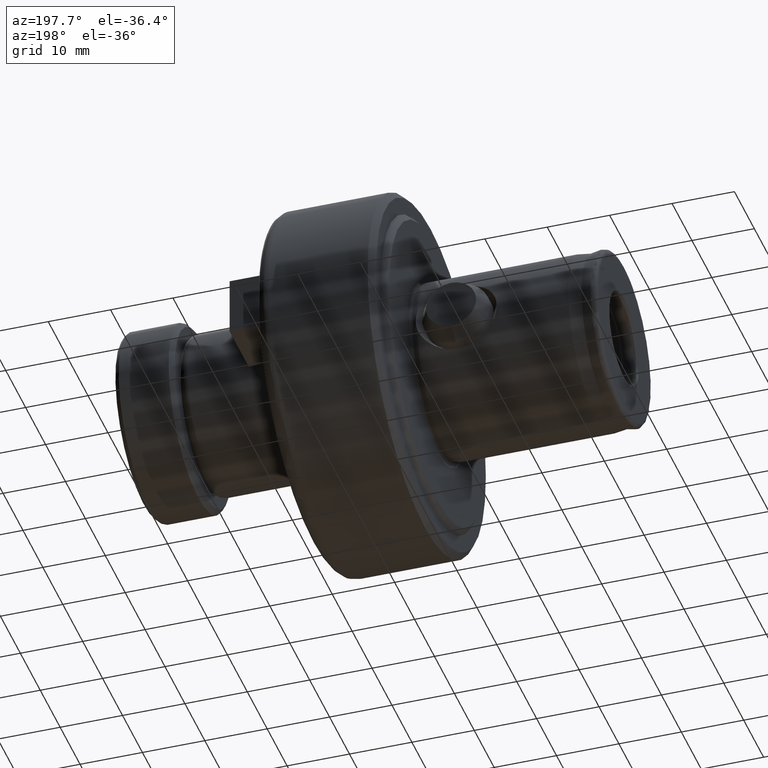
[diagram: clean part render]
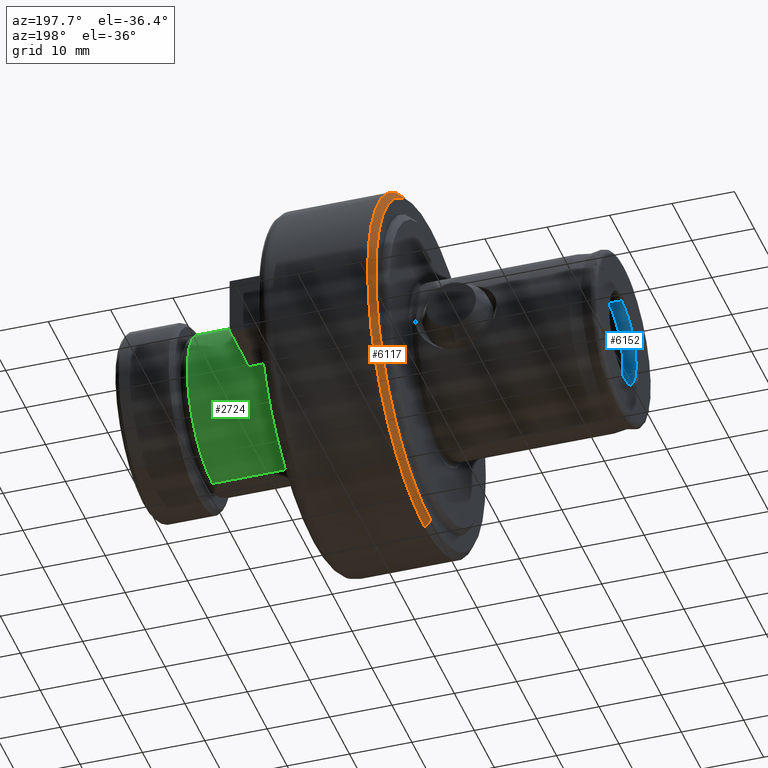
[diagram: same view with three faces highlighted in distinct colors, each labeled with its STEP entity id]
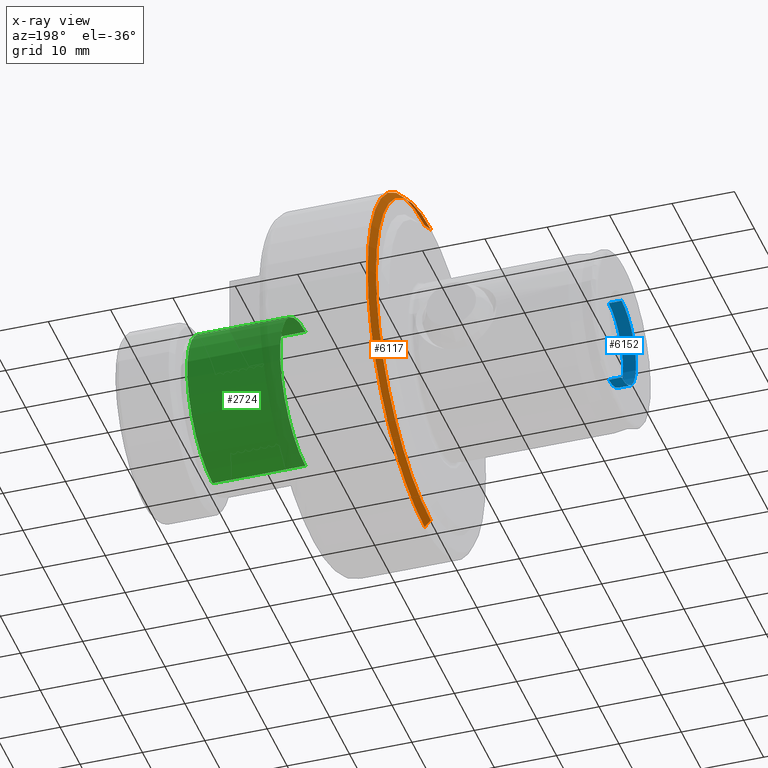
[diagram: x-ray of the same camera — body ghosted, the three highlighted faces saturated]
A machine part, auxiliary view with three faces highlighted in distinct colors.
The next image is the same camera in x-ray (body ghosted, the three faces saturated) — at least one of them is partly hidden behind the body in this view.
Their STEP definitions:

[orange] entity #6117 — the highlighted conical surface has half-angle 45 deg.
#133 = AXIS2_PLACEMENT_3D ( 'NONE', #1459, #876, #6309 ) ;
#334 = LINE ( 'NONE', #5819, #2823 ) ;
#419 = CARTESIAN_POINT ( 'NONE',  ( 31.00000000000000000, 0.0000000000000000000, -27.59999999999998700 ) ) ;
#754 = CARTESIAN_POINT ( 'NONE',  ( 31.00000000000000000, 3.441257505604061400E-015, 27.59999999999998700 ) ) ;
#871 = DIRECTION ( 'NONE',  ( 0.0000000000000000000, 0.0000000000000000000, -1.000000000000000000 ) ) ;
#876 = DIRECTION ( 'NONE',  ( 1.000000000000000000, 0.0000000000000000000, 0.0000000000000000000 ) ) ;
#1054 = VERTEX_POINT ( 'NONE', #1749 ) ;
#1405 = CARTESIAN_POINT ( 'NONE',  ( 31.00000000000000000, 0.0000000000000000000, -27.59999999999998700 ) ) ;
#1459 = CARTESIAN_POINT ( 'NONE',  ( 31.00000000000000000, 0.0000000000000000000, 0.0000000000000000000 ) ) ;
#1749 = CARTESIAN_POINT ( 'NONE',  ( 32.00000000000002800, 3.502489845561430200E-015, -28.60000000000000100 ) ) ;
#1850 = EDGE_CURVE ( 'NONE', #6926, #1054, #7606, .T. ) ;
#2044 = DIRECTION ( 'NONE',  ( 0.7071067811865524600, 8.659560562354874900E-017, 0.7071067811865426900 ) ) ;
#2217 = AXIS2_PLACEMENT_3D ( 'NONE', #5018, #3783, #7422 ) ;
#2524 = ORIENTED_EDGE ( 'NONE', *, *, #2607, .F. ) ;
#2585 = VERTEX_POINT ( 'NONE', #754 ) ;
#2607 = EDGE_CURVE ( 'NONE', #2585, #6926, #5608, .T. ) ;
#2709 = CARTESIAN_POINT ( 'NONE',  ( 31.00000000000000000, 0.0000000000000000000, 0.0000000000000000000 ) ) ;
#2719 = DIRECTION ( 'NONE',  ( 0.7071067811865524600, 0.0000000000000000000, -0.7071067811865426900 ) ) ;
#2823 = VECTOR ( 'NONE', #2044, 1000.000000000000000 ) ;
#3783 = DIRECTION ( 'NONE',  ( 1.000000000000000000, 0.0000000000000000000, 0.0000000000000000000 ) ) ;
#3981 = ORIENTED_EDGE ( 'NONE', *, *, #1850, .F. ) ;
#4024 = AXIS2_PLACEMENT_3D ( 'NONE', #2709, #4606, #871 ) ;
#4457 = EDGE_LOOP ( 'NONE', ( #2524, #5388, #5060, #3981 ) ) ;
#4495 = EDGE_CURVE ( 'NONE', #2585, #7444, #334, .T. ) ;
#4606 = DIRECTION ( 'NONE',  ( -1.000000000000000000, -0.0000000000000000000, -0.0000000000000000000 ) ) ;
#4671 = CARTESIAN_POINT ( 'NONE',  ( 32.00000000000002800, 0.0000000000000000000, 28.60000000000000100 ) ) ;
#5018 = CARTESIAN_POINT ( 'NONE',  ( 32.00000000000002800, 0.0000000000000000000, 0.0000000000000000000 ) ) ;
#5060 = ORIENTED_EDGE ( 'NONE', *, *, #5537, .F. ) ;
#5388 = ORIENTED_EDGE ( 'NONE', *, *, #4495, .T. ) ;
#5393 = CIRCLE ( 'NONE', #2217, 28.60000000000000100 ) ;
#5537 = EDGE_CURVE ( 'NONE', #1054, #7444, #5393, .T. ) ;
#5608 = CIRCLE ( 'NONE', #4024, 27.59999999999998700 ) ;
#5819 = CARTESIAN_POINT ( 'NONE',  ( 31.00000000000000000, 3.380025165646693100E-015, 27.59999999999998700 ) ) ;
#6117 = ADVANCED_FACE ( 'NONE', ( #6150 ), #7106, .T. ) ;
#6150 = FACE_OUTER_BOUND ( 'NONE', #4457, .T. ) ;
#6171 = VECTOR ( 'NONE', #2719, 1000.000000000000000 ) ;
#6309 = DIRECTION ( 'NONE',  ( 0.0000000000000000000, 0.0000000000000000000, -1.000000000000000000 ) ) ;
#6926 = VERTEX_POINT ( 'NONE', #419 ) ;
#7106 = CONICAL_SURFACE ( 'NONE', #133, 27.59999999999998700, 0.7853981633974415100 ) ;
#7422 = DIRECTION ( 'NONE',  ( 0.0000000000000000000, 0.0000000000000000000, -1.000000000000000000 ) ) ;
#7444 = VERTEX_POINT ( 'NONE', #4671 ) ;
#7606 = LINE ( 'NONE', #1405, #6171 ) ;

[blue] entity #6152 — the highlighted cylindrical surface (partial cylindrical patch) has radius 7.25 mm, axis along (-1, -0, -0).
#113 = DIRECTION ( 'NONE',  ( 0.0000000000000000000, 0.0000000000000000000, 1.000000000000000000 ) ) ;
#155 = CARTESIAN_POINT ( 'NONE',  ( 0.4330127018922177400, 0.0000000000000000000, 7.250000000000000000 ) ) ;
#339 = EDGE_CURVE ( 'NONE', #6082, #4906, #3740, .T. ) ;
#505 = EDGE_LOOP ( 'NONE', ( #3318, #5113, #1606, #4498 ) ) ;
#713 = CARTESIAN_POINT ( 'NONE',  ( 2.500000000000001300, 8.878689293818310100E-016, -7.250000000000000000 ) ) ;
#832 = DIRECTION ( 'NONE',  ( 0.0000000000000000000, 0.0000000000000000000, 1.000000000000000000 ) ) ;
#1194 = EDGE_CURVE ( 'NONE', #7292, #4906, #4405, .T. ) ;
#1365 = CARTESIAN_POINT ( 'NONE',  ( 0.0000000000000000000, 0.0000000000000000000, 7.250000000000000000 ) ) ;
#1606 = ORIENTED_EDGE ( 'NONE', *, *, #1194, .T. ) ;
#1718 = EDGE_CURVE ( 'NONE', #3128, #7292, #4395, .T. ) ;
#1829 = CARTESIAN_POINT ( 'NONE',  ( 0.0000000000000000000, 8.878689293818310100E-016, -7.250000000000000000 ) ) ;
#2089 = DIRECTION ( 'NONE',  ( -1.000000000000000000, -0.0000000000000000000, -0.0000000000000000000 ) ) ;
#2801 = VECTOR ( 'NONE', #5627, 1000.000000000000000 ) ;
#3128 = VERTEX_POINT ( 'NONE', #713 ) ;
#3288 = CARTESIAN_POINT ( 'NONE',  ( 0.0000000000000000000, 0.0000000000000000000, 0.0000000000000000000 ) ) ;
#3318 = ORIENTED_EDGE ( 'NONE', *, *, #5980, .F. ) ;
#3323 = CYLINDRICAL_SURFACE ( 'NONE', #6234, 7.250000000000000000 ) ;
#3732 = DIRECTION ( 'NONE',  ( -1.000000000000000000, -0.0000000000000000000, -0.0000000000000000000 ) ) ;
#3740 = LINE ( 'NONE', #1365, #2801 ) ;
#4366 = FACE_OUTER_BOUND ( 'NONE', #505, .T. ) ;
#4395 = LINE ( 'NONE', #1829, #5803 ) ;
#4405 = CIRCLE ( 'NONE', #5534, 7.250000000000000000 ) ;
#4498 = ORIENTED_EDGE ( 'NONE', *, *, #339, .F. ) ;
#4525 = DIRECTION ( 'NONE',  ( 0.0000000000000000000, 0.0000000000000000000, 1.000000000000000000 ) ) ;
#4736 = AXIS2_PLACEMENT_3D ( 'NONE', #6829, #3732, #113 ) ;
#4906 = VERTEX_POINT ( 'NONE', #155 ) ;
#5113 = ORIENTED_EDGE ( 'NONE', *, *, #1718, .T. ) ;
#5427 = DIRECTION ( 'NONE',  ( -1.000000000000000000, -0.0000000000000000000, -0.0000000000000000000 ) ) ;
#5534 = AXIS2_PLACEMENT_3D ( 'NONE', #7237, #7324, #832 ) ;
#5627 = DIRECTION ( 'NONE',  ( -1.000000000000000000, -0.0000000000000000000, -0.0000000000000000000 ) ) ;
#5666 = CARTESIAN_POINT ( 'NONE',  ( 2.500000000000001300, 0.0000000000000000000, 7.250000000000000000 ) ) ;
#5803 = VECTOR ( 'NONE', #5427, 1000.000000000000000 ) ;
#5980 = EDGE_CURVE ( 'NONE', #3128, #6082, #7869, .T. ) ;
#6082 = VERTEX_POINT ( 'NONE', #5666 ) ;
#6152 = ADVANCED_FACE ( 'NONE', ( #4366 ), #3323, .F. ) ;
#6234 = AXIS2_PLACEMENT_3D ( 'NONE', #3288, #2089, #4525 ) ;
#6453 = CARTESIAN_POINT ( 'NONE',  ( 0.4330127018922177400, 9.031770143711729000E-016, -7.250000000000000000 ) ) ;
#6829 = CARTESIAN_POINT ( 'NONE',  ( 2.500000000000001300, 0.0000000000000000000, 0.0000000000000000000 ) ) ;
#7237 = CARTESIAN_POINT ( 'NONE',  ( 0.4330127018922177400, 0.0000000000000000000, 0.0000000000000000000 ) ) ;
#7292 = VERTEX_POINT ( 'NONE', #6453 ) ;
#7324 = DIRECTION ( 'NONE',  ( -1.000000000000000000, -0.0000000000000000000, -0.0000000000000000000 ) ) ;
#7869 = CIRCLE ( 'NONE', #4736, 7.250000000000000000 ) ;

[green] entity #2724 — the highlighted cylindrical surface (partial cylindrical patch) has radius 12.7 mm, axis along (-1, -0, -0).
#67 = CARTESIAN_POINT ( 'NONE',  ( 66.00000000000000000, 1.555301434917138400E-015, -12.69999999999999900 ) ) ;
#303 = AXIS2_PLACEMENT_3D ( 'NONE', #5170, #7627, #2853 ) ;
#356 = DIRECTION ( 'NONE',  ( -1.000000000000000000, -0.0000000000000000000, -0.0000000000000000000 ) ) ;
#369 = CARTESIAN_POINT ( 'NONE',  ( 0.0000000000000000000, 1.555301434917138400E-015, -12.69999999999999900 ) ) ;
#492 = EDGE_CURVE ( 'NONE', #6681, #1224, #1277, .T. ) ;
#775 = DIRECTION ( 'NONE',  ( -1.000000000000000000, -0.0000000000000000000, -0.0000000000000000000 ) ) ;
#952 = VERTEX_POINT ( 'NONE', #7588 ) ;
#1224 = VERTEX_POINT ( 'NONE', #7316 ) ;
#1277 = LINE ( 'NONE', #369, #7245 ) ;
#1983 = ORIENTED_EDGE ( 'NONE', *, *, #492, .T. ) ;
#2071 = EDGE_CURVE ( 'NONE', #952, #6681, #6740, .T. ) ;
#2293 = VECTOR ( 'NONE', #6970, 1000.000000000000000 ) ;
#2588 = FACE_OUTER_BOUND ( 'NONE', #7779, .T. ) ;
#2724 = ADVANCED_FACE ( 'NONE', ( #2588 ), #7417, .T. ) ;
#2756 = VERTEX_POINT ( 'NONE', #7027 ) ;
#2792 = DIRECTION ( 'NONE',  ( -1.000000000000000000, -0.0000000000000000000, -0.0000000000000000000 ) ) ;
#2830 = DIRECTION ( 'NONE',  ( 0.0000000000000000000, 0.0000000000000000000, 1.000000000000000000 ) ) ;
#2853 = DIRECTION ( 'NONE',  ( 0.0000000000000000000, 0.0000000000000000000, 1.000000000000000000 ) ) ;
#3150 = ORIENTED_EDGE ( 'NONE', *, *, #2071, .T. ) ;
#3201 = EDGE_CURVE ( 'NONE', #952, #2756, #6840, .T. ) ;
#3538 = CIRCLE ( 'NONE', #5324, 12.69999999999999900 ) ;
#3891 = ORIENTED_EDGE ( 'NONE', *, *, #7610, .F. ) ;
#3959 = CARTESIAN_POINT ( 'NONE',  ( 66.00000000000000000, 0.0000000000000000000, 0.0000000000000000000 ) ) ;
#4165 = AXIS2_PLACEMENT_3D ( 'NONE', #3959, #356, #5775 ) ;
#5170 = CARTESIAN_POINT ( 'NONE',  ( 0.0000000000000000000, 0.0000000000000000000, 0.0000000000000000000 ) ) ;
#5237 = CARTESIAN_POINT ( 'NONE',  ( 51.11223641030748200, 0.0000000000000000000, 0.0000000000000000000 ) ) ;
#5324 = AXIS2_PLACEMENT_3D ( 'NONE', #5237, #2792, #2830 ) ;
#5775 = DIRECTION ( 'NONE',  ( 0.0000000000000000000, 0.0000000000000000000, 1.000000000000000000 ) ) ;
#6357 = CARTESIAN_POINT ( 'NONE',  ( 0.0000000000000000000, 0.0000000000000000000, 12.69999999999999900 ) ) ;
#6681 = VERTEX_POINT ( 'NONE', #67 ) ;
#6740 = CIRCLE ( 'NONE', #4165, 12.69999999999999900 ) ;
#6840 = LINE ( 'NONE', #6357, #2293 ) ;
#6917 = ORIENTED_EDGE ( 'NONE', *, *, #3201, .F. ) ;
#6970 = DIRECTION ( 'NONE',  ( -1.000000000000000000, -0.0000000000000000000, -0.0000000000000000000 ) ) ;
#7027 = CARTESIAN_POINT ( 'NONE',  ( 51.11223641030748200, 0.0000000000000000000, 12.69999999999999900 ) ) ;
#7245 = VECTOR ( 'NONE', #775, 1000.000000000000000 ) ;
#7316 = CARTESIAN_POINT ( 'NONE',  ( 51.11223641030748200, 1.555301434917138400E-015, -12.69999999999999900 ) ) ;
#7417 = CYLINDRICAL_SURFACE ( 'NONE', #303, 12.69999999999999900 ) ;
#7588 = CARTESIAN_POINT ( 'NONE',  ( 66.00000000000000000, 0.0000000000000000000, 12.69999999999999900 ) ) ;
#7610 = EDGE_CURVE ( 'NONE', #2756, #1224, #3538, .T. ) ;
#7627 = DIRECTION ( 'NONE',  ( -1.000000000000000000, -0.0000000000000000000, -0.0000000000000000000 ) ) ;
#7779 = EDGE_LOOP ( 'NONE', ( #3150, #1983, #3891, #6917 ) ) ;